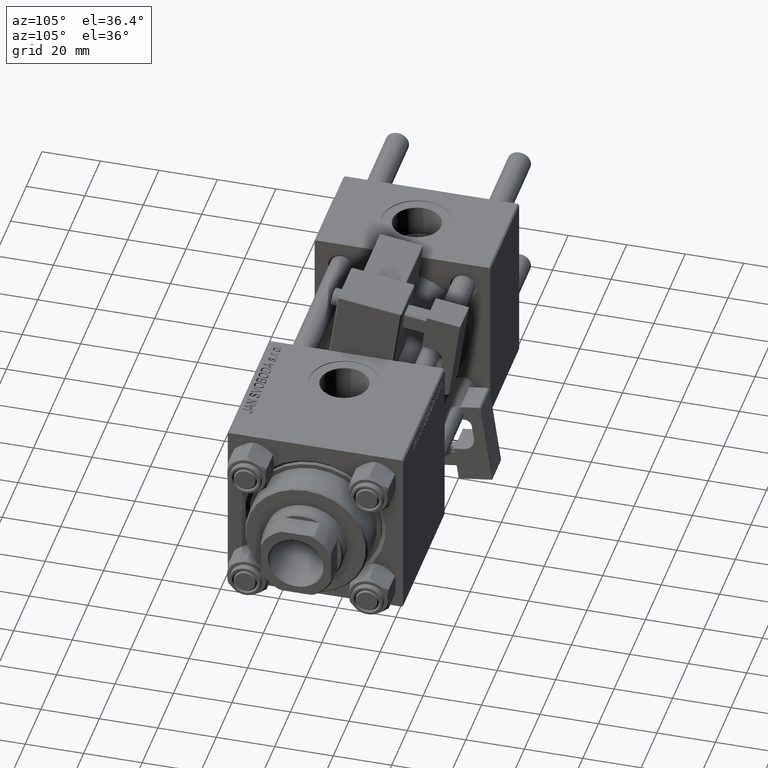
[diagram: clean part render]
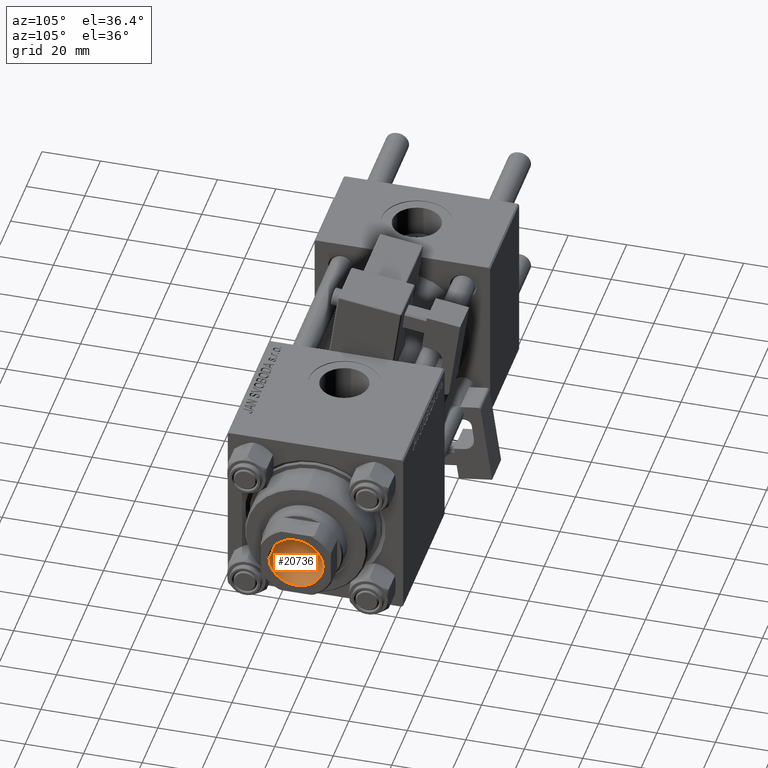
[diagram: same view with one face highlighted and labeled with its STEP entity id]
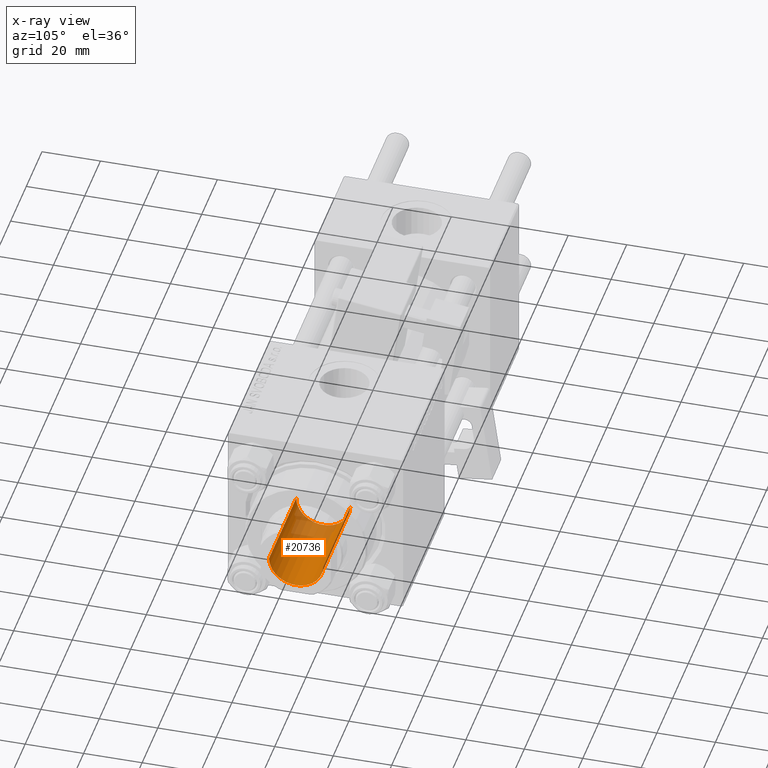
[diagram: x-ray of the same camera — body ghosted, the highlighted face saturated]
A machine part, auxiliary view. The second image highlights one B-rep face of the part: STEP entity #20736.
The next image is the same camera in x-ray: the body ghosted, the highlighted face saturated — about 26% of this face is hidden behind the body in this view.
In plain terms, the highlighted cylindrical surface (edge-blend (fillet) strip) has radius 9.25 mm, axis along (1, 0, -0).
Its self-contained STEP definition (entity closure, byte-faithful):
#1009 = DIRECTION ( 'NONE',  ( -0.000000000000000000, -0.000000000000000000, 1.000000000000000000 ) ) ;
#6519 = VERTEX_POINT ( 'NONE', #21724 ) ;
#6829 = LINE ( 'NONE', #22897, #29208 ) ;
#7126 = CARTESIAN_POINT ( 'NONE',  ( 0.000000000000000000, 0.000000000000000000, 135.7000000000000455 ) ) ;
#7908 = VECTOR ( 'NONE', #43966, 1000.000000000000000 ) ;
#11297 = CYLINDRICAL_SURFACE ( 'NONE', #46178, 9.249999999999994671 ) ;
#11850 = CARTESIAN_POINT ( 'NONE',  ( -9.249999999999994671, 1.132798289211300909E-15, 136.0000000000000000 ) ) ;
#12336 = DIRECTION ( 'NONE',  ( -0.000000000000000000, -0.000000000000000000, 1.000000000000000000 ) ) ;
#12485 = ORIENTED_EDGE ( 'NONE', *, *, #35012, .F. ) ;
#12613 = CARTESIAN_POINT ( 'NONE',  ( -9.249999999999994671, 1.132798289211300909E-15, 135.7000000000000455 ) ) ;
#13639 = DIRECTION ( 'NONE',  ( 1.000000000000000000, 0.000000000000000000, 0.000000000000000000 ) ) ;
#16351 = ORIENTED_EDGE ( 'NONE', *, *, #50992, .F. ) ;
#17602 = VERTEX_POINT ( 'NONE', #51489 ) ;
#18189 = EDGE_CURVE ( 'NONE', #17602, #51661, #18353, .T. ) ;
#18353 = CIRCLE ( 'NONE', #25100, 9.249999999999994671 ) ;
#18719 = DIRECTION ( 'NONE',  ( 0.000000000000000000, 0.000000000000000000, 1.000000000000000000 ) ) ;
#19811 = EDGE_LOOP ( 'NONE', ( #12485, #16351, #36595, #46918 ) ) ;
#19928 = CIRCLE ( 'NONE', #50215, 9.249999999999992895 ) ;
#20675 = CARTESIAN_POINT ( 'NONE',  ( -9.249999999999992895, 1.132798289211300712E-15, 101.0000000000000000 ) ) ;
#20736 = ADVANCED_FACE ( 'NONE', ( #51574 ), #11297, .F. ) ;
#21724 = CARTESIAN_POINT ( 'NONE',  ( 9.249999999999992895, 0.000000000000000000, 101.0000000000000000 ) ) ;
#22897 = CARTESIAN_POINT ( 'NONE',  ( 9.249999999999994671, 0.000000000000000000, 136.0000000000000000 ) ) ;
#25100 = AXIS2_PLACEMENT_3D ( 'NONE', #7126, #18719, #26614 ) ;
#26614 = DIRECTION ( 'NONE',  ( 1.000000000000000000, 0.000000000000000000, 0.000000000000000000 ) ) ;
#29208 = VECTOR ( 'NONE', #1009, 1000.000000000000000 ) ;
#33642 = CARTESIAN_POINT ( 'NONE',  ( 0.000000000000000000, 0.000000000000000000, 101.0000000000000000 ) ) ;
#35012 = EDGE_CURVE ( 'NONE', #45066, #51661, #39497, .T. ) ;
#35779 = CARTESIAN_POINT ( 'NONE',  ( 0.000000000000000000, 0.000000000000000000, 136.0000000000000000 ) ) ;
#36595 = ORIENTED_EDGE ( 'NONE', *, *, #51546, .T. ) ;
#39497 = LINE ( 'NONE', #11850, #7908 ) ;
#43966 = DIRECTION ( 'NONE',  ( -0.000000000000000000, -0.000000000000000000, 1.000000000000000000 ) ) ;
#45066 = VERTEX_POINT ( 'NONE', #20675 ) ;
#46178 = AXIS2_PLACEMENT_3D ( 'NONE', #35779, #12336, #51835 ) ;
#46918 = ORIENTED_EDGE ( 'NONE', *, *, #18189, .T. ) ;
#49703 = DIRECTION ( 'NONE',  ( -0.000000000000000000, -0.000000000000000000, 1.000000000000000000 ) ) ;
#50215 = AXIS2_PLACEMENT_3D ( 'NONE', #33642, #49703, #13639 ) ;
#50992 = EDGE_CURVE ( 'NONE', #6519, #45066, #19928, .T. ) ;
#51489 = CARTESIAN_POINT ( 'NONE',  ( 9.249999999999994671, 0.000000000000000000, 135.7000000000000455 ) ) ;
#51546 = EDGE_CURVE ( 'NONE', #6519, #17602, #6829, .T. ) ;
#51574 = FACE_OUTER_BOUND ( 'NONE', #19811, .T. ) ;
#51661 = VERTEX_POINT ( 'NONE', #12613 ) ;
#51835 = DIRECTION ( 'NONE',  ( 1.000000000000000000, 0.000000000000000000, 0.000000000000000000 ) ) ;